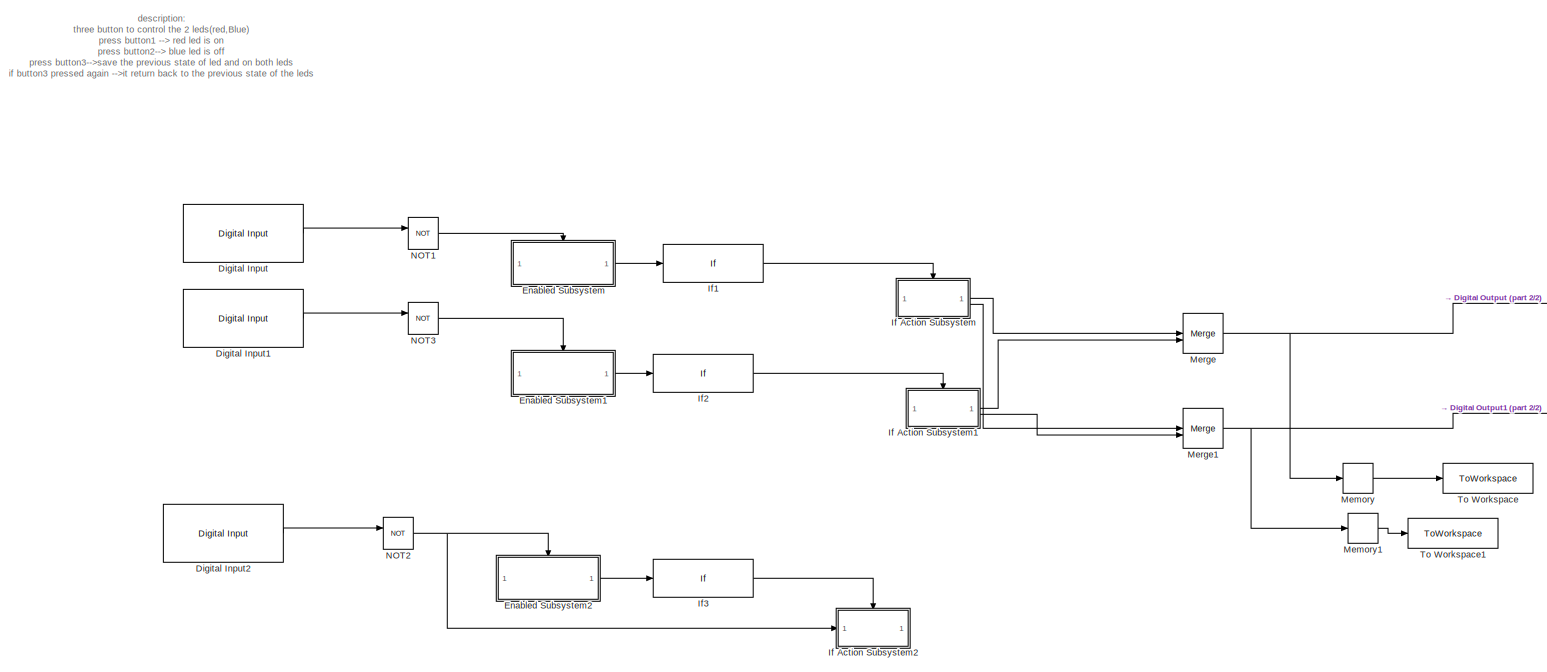
[diagram: root canvas - part 1/2, most of the canvas]
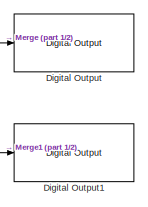
[diagram: root canvas - part 2/2, middle right region]
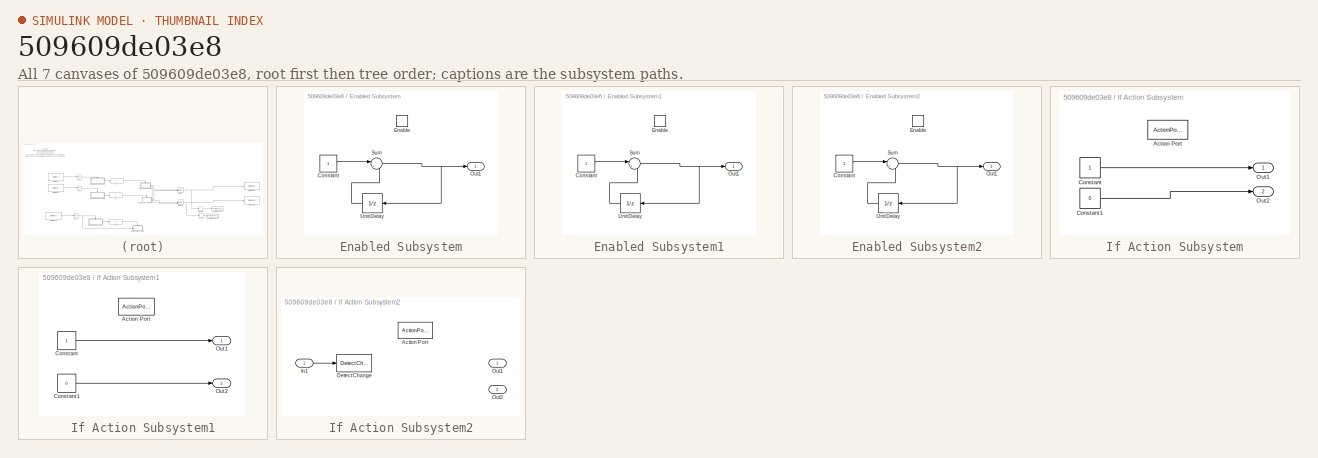
[diagram: thumbnail index - all 7 canvases of the model, root first then tree order]
MODEL slx_509609de03e8
KIND model
CONFIG AbsTol = auto
CONFIG EnableMultiTasking = on
CONFIG FixedStep = auto
CONFIG MaxStep = 1e-3
CONFIG MinStep = auto
CONFIG RelTol = 1e-3
CONFIG SampleTimeConstraint = Unconstrained
CONFIG SolverName = FixedStepAuto
CONFIG StartTime = 0.0
CONFIG StopTime = 10
BLOCK [Reference] Digital Input  REF=arduinolib/Digital Input
  SourceBlock = arduinolib/Digital Input
  SourceType = Arduino Digital Input
BLOCK [Reference] Digital Input1  REF=arduinolib/Digital Input
  SourceBlock = arduinolib/Digital Input
  SourceType = Arduino Digital Input
BLOCK [Reference] Digital Input2  REF=arduinolib/Digital Input
  SourceBlock = arduinolib/Digital Input
  SourceType = Arduino Digital Input
BLOCK [Reference] Digital Output  REF=arduinolib/Digital Output
  SourceBlock = arduinolib/Digital Output
  SourceType = Arduino Digital Output
BLOCK [Reference] Digital Output1  REF=arduinolib/Digital Output
  SourceBlock = arduinolib/Digital Output
  SourceType = Arduino Digital Output
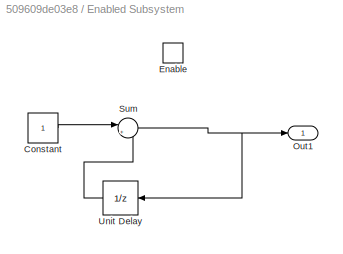
BLOCK [SubSystem] Enabled Subsystem
  TreatAsAtomicUnit = on
BLOCK [Constant] Enabled Subsystem/Constant
BLOCK [EnablePort] Enabled Subsystem/Enable
  StatesWhenEnabling = reset
BLOCK [Outport] Enabled Subsystem/Out1
BLOCK [Sum] Enabled Subsystem/Sum
  Inputs = |++
BLOCK [UnitDelay] Enabled Subsystem/Unit Delay
  HasFrameUpgradeWarning = on
  NameLocation = top
  SampleTime = -1
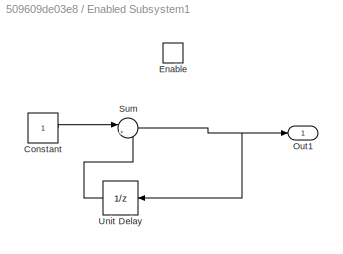
BLOCK [SubSystem] Enabled Subsystem1
  TreatAsAtomicUnit = on
BLOCK [Constant] Enabled Subsystem1/Constant
BLOCK [EnablePort] Enabled Subsystem1/Enable
  StatesWhenEnabling = reset
BLOCK [Outport] Enabled Subsystem1/Out1
BLOCK [Sum] Enabled Subsystem1/Sum
  Inputs = |++
BLOCK [UnitDelay] Enabled Subsystem1/Unit Delay
  HasFrameUpgradeWarning = on
  NameLocation = top
  SampleTime = -1
BLOCK [SubSystem] Enabled Subsystem2
  TreatAsAtomicUnit = on
BLOCK [Constant] Enabled Subsystem2/Constant
BLOCK [EnablePort] Enabled Subsystem2/Enable
  StatesWhenEnabling = reset
BLOCK [Outport] Enabled Subsystem2/Out1
BLOCK [Sum] Enabled Subsystem2/Sum
  Inputs = |++
BLOCK [UnitDelay] Enabled Subsystem2/Unit Delay
  HasFrameUpgradeWarning = on
  NameLocation = top
  SampleTime = -1
BLOCK [SubSystem] If Action Subsystem
  TreatAsAtomicUnit = on
BLOCK [ActionPort] If Action Subsystem/Action Port
  ActionPortLabel = if(u1 ==10)
BLOCK [Constant] If Action Subsystem/Constant
BLOCK [Constant] If Action Subsystem/Constant1
  Value = 0
BLOCK [Outport] If Action Subsystem/Out1
BLOCK [Outport] If Action Subsystem/Out2
  Port = 2
BLOCK [SubSystem] If Action Subsystem1
  TreatAsAtomicUnit = on
BLOCK [ActionPort] If Action Subsystem1/Action Port
  ActionPortLabel = if(u1 ==10)
BLOCK [Constant] If Action Subsystem1/Constant
BLOCK [Constant] If Action Subsystem1/Constant1
  Value = 0
BLOCK [Outport] If Action Subsystem1/Out1
BLOCK [Outport] If Action Subsystem1/Out2
  Port = 2
BLOCK [SubSystem] If Action Subsystem2
  TreatAsAtomicUnit = on
BLOCK [ActionPort] If Action Subsystem2/Action Port
  ActionPortLabel = if(u1 ==10)
BLOCK [Reference] If Action Subsystem2/Detect Change  REF=simulink/Logic and Bit
Operations/Detect
Change
  SourceBlock = simulink/Logic and Bit\nOperations/Detect\nChange
  SourceType = Detect Change
BLOCK [Inport] If Action Subsystem2/In1
BLOCK [Outport] If Action Subsystem2/Out1
BLOCK [Outport] If Action Subsystem2/Out2
  Port = 2
BLOCK [If] If1
  IfExpression = u1 ==10
  ShowElse = off
BLOCK [If] If2
  IfExpression = u1 ==10
  ShowElse = off
BLOCK [If] If3
  IfExpression = u1 ==10
  ShowElse = off
BLOCK [Memory] Memory
BLOCK [Memory] Memory1
BLOCK [Merge] Merge
  Inputs = 3
BLOCK [Merge] Merge1
  Inputs = 3
BLOCK [Logic] NOT1
  AllPortsSameDT = off
  IconShape = distinctive
  Operator = NOT
  OutDataTypeStr = boolean
BLOCK [Logic] NOT2
  AllPortsSameDT = off
  IconShape = distinctive
  Operator = NOT
  OutDataTypeStr = boolean
BLOCK [Logic] NOT3
  AllPortsSameDT = off
  IconShape = distinctive
  Operator = NOT
  OutDataTypeStr = boolean
BLOCK [ToWorkspace] To Workspace
  FixptAsFi = on
  MaxDataPoints = inf
  SampleTime = -1
  SaveFormat = Timeseries
  VariableName = Red_State
BLOCK [ToWorkspace] To Workspace1
  FixptAsFi = on
  MaxDataPoints = inf
  SampleTime = -1
  SaveFormat = Timeseries
  VariableName = blue_State
ANNOTATION (root): description: three button to control the 2 leds(red,Blue) press button1 --> red led is on press button2--> blue led is off press button3-->save the previous state of led and on both leds if button3 pressed again -->it return back to the previous state of the leds
LINE Digital Input1:1 -> NOT3:1
LINE Digital Input2:1 -> NOT2:1
LINE Digital Input:1 -> NOT1:1
LINE Enabled Subsystem/Constant:1 -> Enabled Subsystem/Sum:1
NET Enabled Subsystem/Sum:1 -> Enabled Subsystem/Out1:1, Enabled Subsystem/Unit Delay:1
LINE Enabled Subsystem/Unit Delay:1 -> Enabled Subsystem/Sum:2
LINE Enabled Subsystem1/Constant:1 -> Enabled Subsystem1/Sum:1
NET Enabled Subsystem1/Sum:1 -> Enabled Subsystem1/Out1:1, Enabled Subsystem1/Unit Delay:1
LINE Enabled Subsystem1/Unit Delay:1 -> Enabled Subsystem1/Sum:2
LINE Enabled Subsystem1:1 -> If2:1
LINE Enabled Subsystem2/Constant:1 -> Enabled Subsystem2/Sum:1
NET Enabled Subsystem2/Sum:1 -> Enabled Subsystem2/Out1:1, Enabled Subsystem2/Unit Delay:1
LINE Enabled Subsystem2/Unit Delay:1 -> Enabled Subsystem2/Sum:2
LINE Enabled Subsystem2:1 -> If3:1
LINE Enabled Subsystem:1 -> If1:1
LINE If Action Subsystem/Constant1:1 -> If Action Subsystem/Out2:1
LINE If Action Subsystem/Constant:1 -> If Action Subsystem/Out1:1
LINE If Action Subsystem1/Constant1:1 -> If Action Subsystem1/Out2:1
LINE If Action Subsystem1/Constant:1 -> If Action Subsystem1/Out1:1
LINE If Action Subsystem1:1 -> Merge:2
LINE If Action Subsystem1:2 -> Merge1:2
LINE If Action Subsystem2/In1:1 -> If Action Subsystem2/Detect Change:1
LINE If Action Subsystem:1 -> Merge:1
LINE If Action Subsystem:2 -> Merge1:1
LINE If1:1 -> If Action Subsystem:ifaction
LINE If2:1 -> If Action Subsystem1:ifaction
LINE If3:1 -> If Action Subsystem2:ifaction
LINE Memory1:1 -> To Workspace1:1
LINE Memory:1 -> To Workspace:1
NET Merge1:1 -> Digital Output1:1, Memory1:1
NET Merge:1 -> Digital Output:1, Memory:1
LINE NOT1:1 -> Enabled Subsystem:enable
NET NOT2:1 -> Enabled Subsystem2:enable, If Action Subsystem2:1
LINE NOT3:1 -> Enabled Subsystem1:enable
note: NET lines group one-source signal fan-out (src -> all destinations, sorted); 1:1 wires keep LINE
